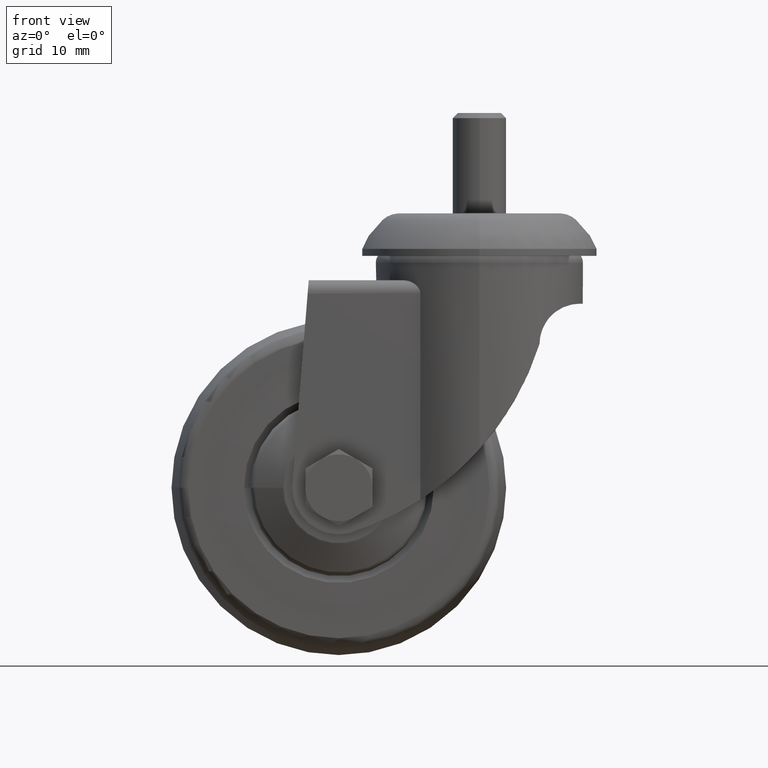
[diagram: clean part render]
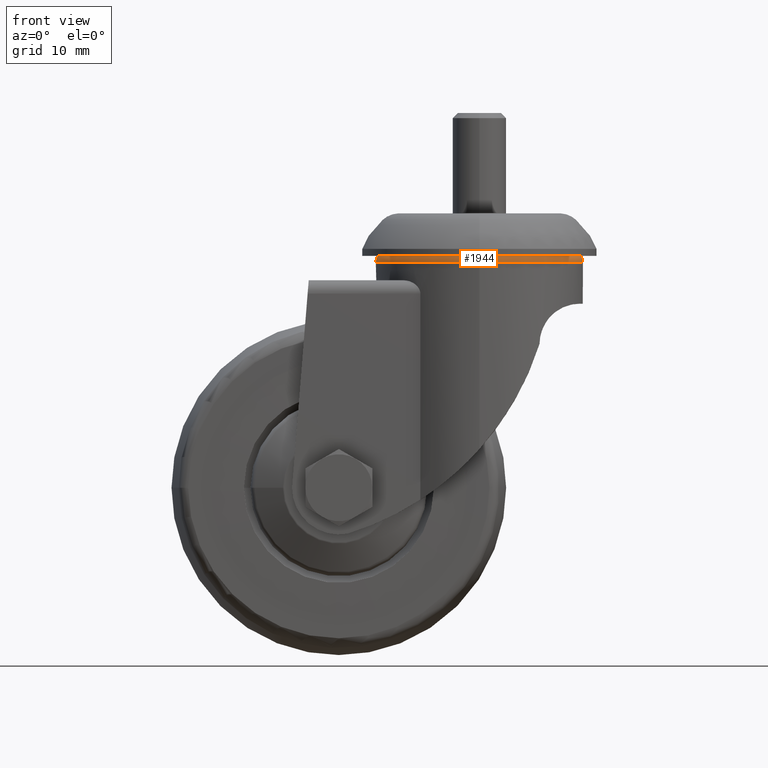
[diagram: same view with one face highlighted and labeled with its STEP entity id]
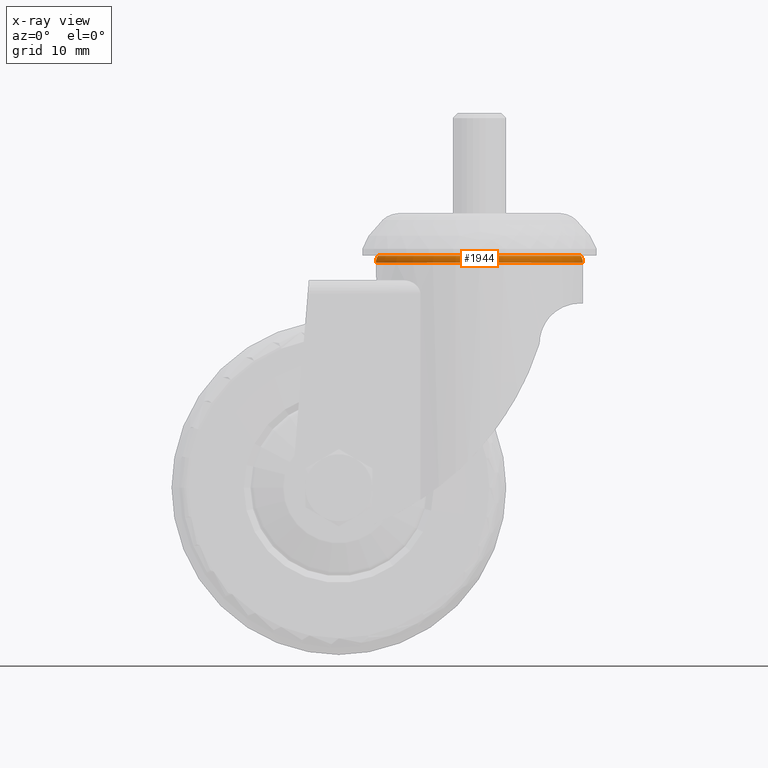
[diagram: x-ray of the same camera — body ghosted, the highlighted face saturated]
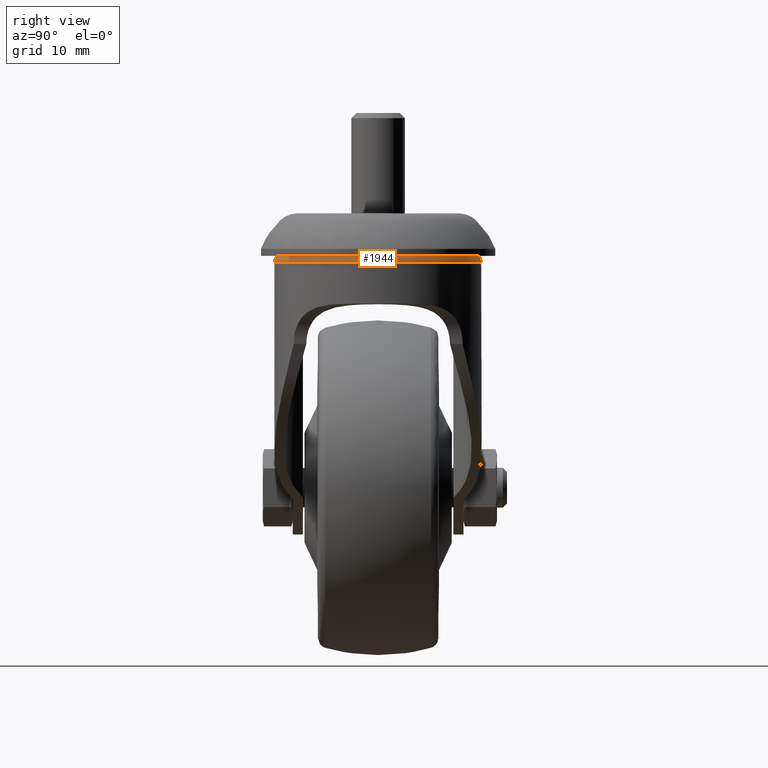
[diagram: same view with one face highlighted and labeled with its STEP entity id]
A machine part, front view. The second image highlights one B-rep face of the part: STEP entity #1944.
The next image is the same camera in x-ray: the body ghosted, the highlighted face saturated — about 0% of this face is hidden behind the body in this view.
A second angle (right view) of the same face is appended — the face is thin or edge-on in the first view.
In plain terms, the highlighted toroidal blend (fillet) surface has major radius 13.5001 mm and minor (blend) radius 2 mm.
Its self-contained STEP definition (entity closure, byte-faithful):
#108=TOROIDAL_SURFACE('',#2365,13.5000782499426,1.99999999999993);
#446=FACE_OUTER_BOUND('',#593,.T.);
#593=EDGE_LOOP('',(#1621,#1622,#1623,#1624));
#721=CIRCLE('',#2342,15.5);
#734=CIRCLE('',#2364,15.2);
#735=CIRCLE('',#2366,1.99999999999993);
#940=VERTEX_POINT('',#3619);
#951=VERTEX_POINT('',#3710);
#1166=EDGE_CURVE('',#940,#940,#721,.T.);
#1185=EDGE_CURVE('',#951,#951,#734,.T.);
#1186=EDGE_CURVE('',#940,#951,#735,.T.);
#1621=ORIENTED_EDGE('',*,*,#1166,.F.);
#1622=ORIENTED_EDGE('',*,*,#1186,.T.);
#1623=ORIENTED_EDGE('',*,*,#1185,.T.);
#1624=ORIENTED_EDGE('',*,*,#1186,.F.);
#1944=ADVANCED_FACE('',(#446),#108,.T.);
#2342=AXIS2_PLACEMENT_3D('',#3621,#2818,#2819);
#2364=AXIS2_PLACEMENT_3D('',#3711,#2866,#2867);
#2365=AXIS2_PLACEMENT_3D('',#3712,#2868,#2869);
#2366=AXIS2_PLACEMENT_3D('',#3713,#2870,#2871);
#2818=DIRECTION('center_axis',(0.,-1.,0.));
#2819=DIRECTION('ref_axis',(0.,0.,-1.));
#2866=DIRECTION('center_axis',(0.,-1.,0.));
#2867=DIRECTION('ref_axis',(0.,0.,-1.));
#2868=DIRECTION('center_axis',(0.,-1.,0.));
#2869=DIRECTION('ref_axis',(0.,0.,-1.));
#2870=DIRECTION('center_axis',(-1.,0.,0.));
#2871=DIRECTION('ref_axis',(0.,0.,1.));
#3619=CARTESIAN_POINT('',(21.,33.614,15.5));
#3621=CARTESIAN_POINT('Origin',(21.,33.614,0.));
#3710=CARTESIAN_POINT('',(21.,34.65,15.2));
#3711=CARTESIAN_POINT('Origin',(21.,34.65,0.));
#3712=CARTESIAN_POINT('Origin',(21.,33.5963083735355,0.));
#3713=CARTESIAN_POINT('Origin',(21.,33.5963083735355,13.5000782499426));